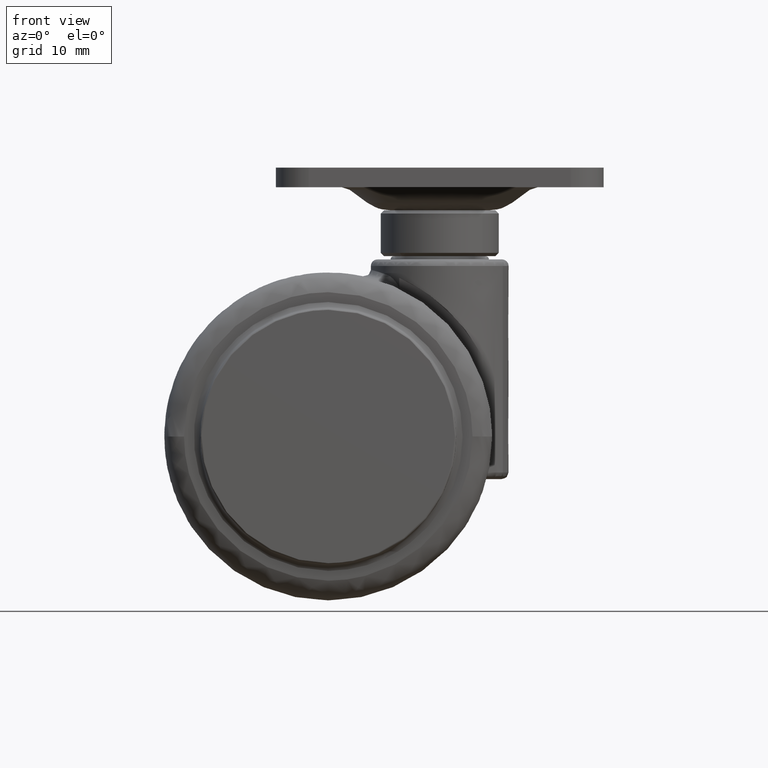
[diagram: clean part render]
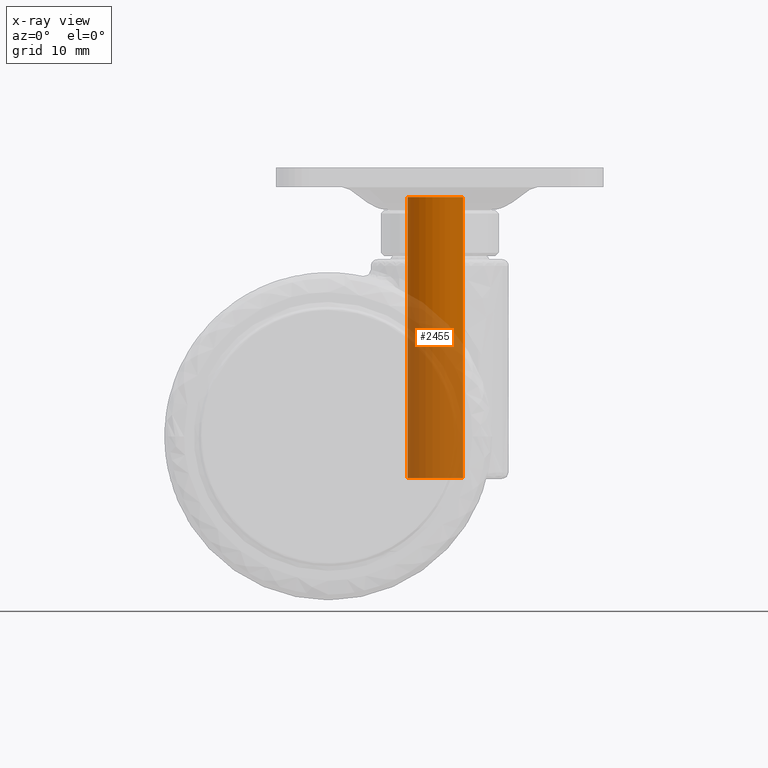
[diagram: x-ray — body ghosted, one internal face saturated and labeled with its STEP entity id]
A machine part, front view, then the same camera in x-ray: the body is ghosted and one INTERNAL B-rep face — a face not visible from any outside direction — is saturated and labeled: STEP entity #2455.
In plain terms, the highlighted face is a freeform B-spline surface patch.
Its self-contained STEP definition (entity closure, byte-faithful):
#2196=CARTESIAN_POINT('',(13.445665677092830,3.372937330697353,-6.399999923293645));
#2197=VERTEX_POINT('',#2196);
#2225=CARTESIAN_POINT('',(20.554334322907160,-3.372937330697345,-6.399999923293636));
#2226=VERTEX_POINT('',#2225);
#2271=CARTESIAN_POINT('',(12.100000000000000,0.0,-6.400000000000000));
#2272=VERTEX_POINT('',#2271);
#2273=CARTESIAN_POINT('',(12.100000000000000,0.0,-6.400000000000000));
#2274=CARTESIAN_POINT('',(12.099961564564421,0.310017658199675,-6.399999992949669));
#2275=CARTESIAN_POINT('',(12.157199883932270,0.910657080840106,-6.399999979290107));
#2276=CARTESIAN_POINT('',(12.403409283861439,1.770946161786506,-6.399999959725653));
#2277=CARTESIAN_POINT('',(12.815201265407790,2.608965551408736,-6.399999940667669));
#2278=CARTESIAN_POINT('',(13.205548354839509,3.119988004899133,-6.399999929046150));
#2279=CARTESIAN_POINT('',(13.445665677092830,3.372937330697353,-6.399999923293645));
#2280=B_SPLINE_CURVE_WITH_KNOTS('',3,(#2273,#2274,#2275,#2276,#2277,#2278,#2279),.UNSPECIFIED.,.F.,.U.,(4,1,1,1,4),(0.000000019469863,0.930047780404327,1.801979539347048,2.673886928247087,3.720191063191658),.UNSPECIFIED.);
#2281=EDGE_CURVE('',#2272,#2197,#2280,.T.);
#2288=CARTESIAN_POINT('',(16.999999065458521,-4.899999999999910,-6.400000000000000));
#2289=VERTEX_POINT('',#2288);
#2290=CARTESIAN_POINT('',(20.554334322907160,-3.372937330697345,-6.399999923293636));
#2291=CARTESIAN_POINT('',(20.340494092683009,-3.598315877770880,-6.399999927908533));
#2292=CARTESIAN_POINT('',(19.822705776163680,-4.049225424732627,-6.399999939082967));
#2293=CARTESIAN_POINT('',(18.966269344590660,-4.525203066767706,-6.399999957565775));
#2294=CARTESIAN_POINT('',(17.994165094414601,-4.830482233326477,-6.399999978544835));
#2295=CARTESIAN_POINT('',(17.352109107306369,-4.900058720676904,-6.399999992401074));
#2296=CARTESIAN_POINT('',(16.999999065458521,-4.899999999999910,-6.400000000000000));
#2297=B_SPLINE_CURVE_WITH_KNOTS('',3,(#2290,#2291,#2292,#2293,#2294,#2295,#2296),.UNSPECIFIED.,.F.,.U.,(4,1,1,1,4),(0.000000023382517,0.932052532920838,2.050504579792980,2.920432633950873,3.976760225442799),.UNSPECIFIED.);
#2298=EDGE_CURVE('',#2226,#2289,#2297,.T.);
#2300=CARTESIAN_POINT('',(16.999999065458521,-4.899999999999910,-6.400000000000000));
#2301=CARTESIAN_POINT('',(16.478809968011380,-4.900298389115212,-6.399999999999981));
#2302=CARTESIAN_POINT('',(15.657217352885070,-4.767590553121912,-6.400000000000037));
#2303=CARTESIAN_POINT('',(14.586990644700810,-4.300975591811026,-6.399999999999973));
#2304=CARTESIAN_POINT('',(13.908551737038470,-3.829346156625408,-6.400000000000006));
#2305=CARTESIAN_POINT('',(13.243635290847561,-3.188532764496417,-6.399999999999997));
#2306=CARTESIAN_POINT('',(12.711279473809030,-2.452021101295264,-6.400000000000016));
#2307=CARTESIAN_POINT('',(12.227245422878790,-1.322752008091288,-6.399999999999991));
#2308=CARTESIAN_POINT('',(12.099736651644379,-0.501136731418440,-6.400000000000024));
#2309=CARTESIAN_POINT('',(12.100000000000000,0.0,-6.400000000000000));
#2310=B_SPLINE_CURVE_WITH_KNOTS('',3,(#2300,#2301,#2302,#2303,#2304,#2305,#2306,#2307,#2308,#2309),.UNSPECIFIED.,.F.,.U.,(4,1,1,1,1,1,1,4),(0.000000079538808,1.563442760301999,2.465431968522028,3.487707116552671,4.028849878312244,5.231519213058441,6.193646663917974,7.696949769365509),.UNSPECIFIED.);
#2311=EDGE_CURVE('',#2289,#2272,#2310,.T.);
#2334=CARTESIAN_POINT('',(13.445665795992760,3.372937307412572,36.500000000000007));
#2335=VERTEX_POINT('',#2334);
#2336=CARTESIAN_POINT('',(13.445665795992760,3.372937307412572,36.500000000000007));
#2337=CARTESIAN_POINT('',(13.445665677092830,3.372937330697353,-6.399999923293645));
#2338=QUASI_UNIFORM_CURVE('',1,(#2336,#2337),.UNSPECIFIED.,.F.,.U.);
#2339=EDGE_CURVE('',#2335,#2197,#2338,.T.);
#2369=CARTESIAN_POINT('',(20.554334204007230,-3.372937307412557,36.500000000000000));
#2370=VERTEX_POINT('',#2369);
#2381=CARTESIAN_POINT('',(20.554334204007230,-3.372937307412557,36.500000000000000));
#2382=CARTESIAN_POINT('',(20.554334322907160,-3.372937330697345,-6.399999923293636));
#2383=QUASI_UNIFORM_CURVE('',1,(#2381,#2382),.UNSPECIFIED.,.F.,.U.);
#2384=EDGE_CURVE('',#2370,#2226,#2383,.T.);
#2392=CARTESIAN_POINT('',(20.554334417960209,-3.372937420899394,37.572500000000012));
#2393=CARTESIAN_POINT('',(17.181396997060819,-6.927271838859602,37.572500000000005));
#2394=CARTESIAN_POINT('',(13.627062579100610,-3.554334417960209,37.572500000000012));
#2395=CARTESIAN_POINT('',(10.072728161140397,-0.181396997060815,37.572500000000005));
#2396=CARTESIAN_POINT('',(13.445665582039791,3.372937420899394,37.572500000000012));
#2397=CARTESIAN_POINT('',(20.554334417960209,-3.372937420899394,-7.499312500000001));
#2398=CARTESIAN_POINT('',(17.181396997060819,-6.927271838859602,-7.499312500000002));
#2399=CARTESIAN_POINT('',(13.627062579100610,-3.554334417960209,-7.499312500000002));
#2400=CARTESIAN_POINT('',(10.072728161140397,-0.181396997060815,-7.499312500000003));
#2401=CARTESIAN_POINT('',(13.445665582039791,3.372937420899394,-7.499312500000003));
#2409=(BOUNDED_SURFACE()B_SPLINE_SURFACE(2,1,((#2392,#2397),(#2393,#2398),(#2394,#2399),(#2395,#2400),(#2396,#2401)),.UNSPECIFIED.,.F.,.F.,.U.)B_SPLINE_SURFACE_WITH_KNOTS((3,2,3),(2,2),(0.0,8.118585822512662,16.237171645025320),(0.0,45.071812500000007),.UNSPECIFIED.)GEOMETRIC_REPRESENTATION_ITEM()RATIONAL_B_SPLINE_SURFACE(((1.0,1.0),(0.707106781186548,0.707106781186548),(1.0,1.0),(0.707106781186548,0.707106781186548),(1.0,1.0)))REPRESENTATION_ITEM('')SURFACE());
#2410=ORIENTED_EDGE('',*,*,#2339,.T.);
#2411=ORIENTED_EDGE('',*,*,#2281,.F.);
#2412=ORIENTED_EDGE('',*,*,#2311,.F.);
#2413=ORIENTED_EDGE('',*,*,#2298,.F.);
#2414=ORIENTED_EDGE('',*,*,#2384,.F.);
#2415=CARTESIAN_POINT('',(16.999999065458521,-4.899999999999910,36.500000000000000));
#2416=VERTEX_POINT('',#2415);
#2417=CARTESIAN_POINT('',(20.554334204007230,-3.372937307412557,36.500000000000000));
#2418=CARTESIAN_POINT('',(20.354741824745400,-3.583278553969485,36.500000000000071));
#2419=CARTESIAN_POINT('',(19.840150740988360,-4.037240825824508,36.499999999999908));
#2420=CARTESIAN_POINT('',(18.986116187988269,-4.518984926758194,36.500000000000107));
#2421=CARTESIAN_POINT('',(17.994163857852278,-4.830479568462405,36.499999999999929));
#2422=CARTESIAN_POINT('',(17.352108649391141,-4.900058924169255,36.500000000000007));
#2423=CARTESIAN_POINT('',(16.999999065458521,-4.899999999999910,36.500000000000000));
#2424=B_SPLINE_CURVE_WITH_KNOTS('',3,(#2417,#2418,#2419,#2420,#2421,#2422,#2423),.UNSPECIFIED.,.F.,.U.,(4,1,1,1,4),(0.000000023382762,0.869914044404858,2.050504524902231,2.920432555768214,3.976760118983948),.UNSPECIFIED.);
#2425=EDGE_CURVE('',#2370,#2416,#2424,.T.);
#2426=ORIENTED_EDGE('',*,*,#2425,.T.);
#2427=CARTESIAN_POINT('',(12.100000000000000,0.0,36.500000000000000));
#2428=VERTEX_POINT('',#2427);
#2429=CARTESIAN_POINT('',(16.999999065458521,-4.899999999999910,36.500000000000000));
#2430=CARTESIAN_POINT('',(16.478813774170462,-4.900290587168976,36.499999999999851));
#2431=CARTESIAN_POINT('',(15.657205266136250,-4.767614220923748,36.500000000000220));
#2432=CARTESIAN_POINT('',(14.660820331529390,-4.333118480053199,36.499999999999822));
#2433=CARTESIAN_POINT('',(13.955751469813491,-3.868249706394815,36.500000000000128));
#2434=CARTESIAN_POINT('',(13.366175520546619,-3.320557090454083,36.499999999999829));
#2435=CARTESIAN_POINT('',(12.801551489529979,-2.587912051720368,36.499999999999972));
#2436=CARTESIAN_POINT('',(12.398221178090051,-1.774283368677438,36.500000000000313));
#2437=CARTESIAN_POINT('',(12.151826694594000,-0.861873473955556,36.499999999999453));
#2438=CARTESIAN_POINT('',(12.099972738116319,-0.300659343509346,36.500000000000519));
#2439=CARTESIAN_POINT('',(12.100000000000000,0.0,36.500000000000000));
#2440=B_SPLINE_CURVE_WITH_KNOTS('',3,(#2429,#2430,#2431,#2432,#2433,#2434,#2435,#2436,#2437,#2438,#2439),.UNSPECIFIED.,.F.,.U.,(4,1,1,1,1,1,1,1,4),(0.000000079538808,1.563442760301999,2.465431968522028,3.247173729202314,4.089004446182790,4.870710407509774,6.013246322642456,6.794971753346863,7.696949769365509),.UNSPECIFIED.);
#2441=EDGE_CURVE('',#2416,#2428,#2440,.T.);
#2442=ORIENTED_EDGE('',*,*,#2441,.T.);
#2443=CARTESIAN_POINT('',(12.100000000000000,0.0,36.500000000000000));
#2444=CARTESIAN_POINT('',(12.099923211402320,0.368149938211743,36.500000000000078));
#2445=CARTESIAN_POINT('',(12.176801467206131,1.046268501170194,36.499999999999893));
#2446=CARTESIAN_POINT('',(12.452553964613630,1.877570800661975,36.499999999999943));
#2447=CARTESIAN_POINT('',(12.851651124716630,2.654517972511834,36.500000000000263));
#2448=CARTESIAN_POINT('',(13.192190043949839,3.105945085681829,36.499999999999787));
#2449=CARTESIAN_POINT('',(13.445665795992760,3.372937307412572,36.500000000000007));
#2450=B_SPLINE_CURVE_WITH_KNOTS('',3,(#2443,#2444,#2445,#2446,#2447,#2448,#2449),.UNSPECIFIED.,.F.,.U.,(4,1,1,1,4),(0.000000019469323,1.104434345010278,2.034472571519473,2.615756763796216,3.720191089323120),.UNSPECIFIED.);
#2451=EDGE_CURVE('',#2428,#2335,#2450,.T.);
#2452=ORIENTED_EDGE('',*,*,#2451,.T.);
#2453=EDGE_LOOP('',(#2410,#2411,#2412,#2413,#2414,#2426,#2442,#2452));
#2454=FACE_OUTER_BOUND('',#2453,.T.);
#2455=ADVANCED_FACE('',(#2454),#2409,.T.);